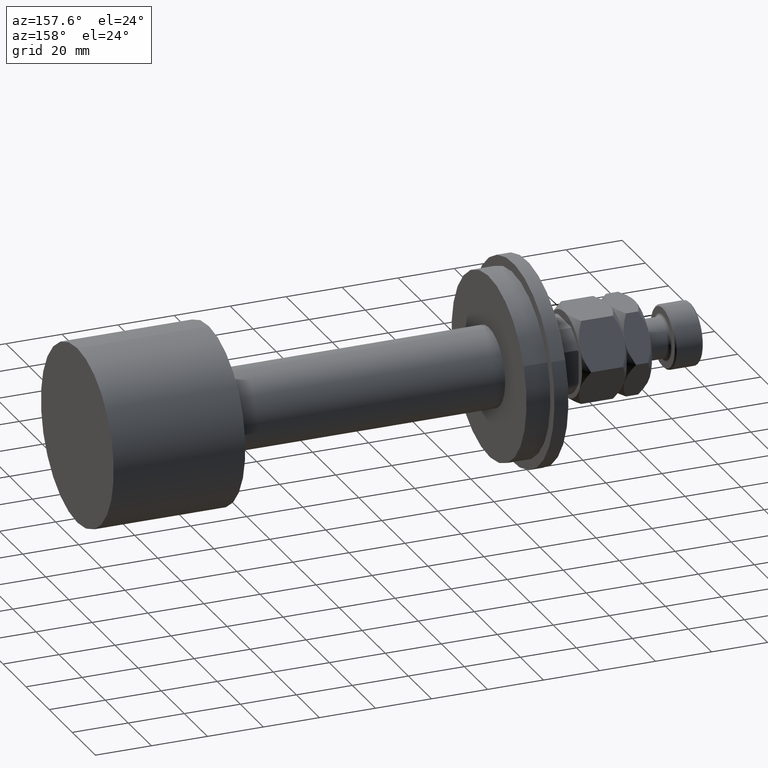
[diagram: clean part render]
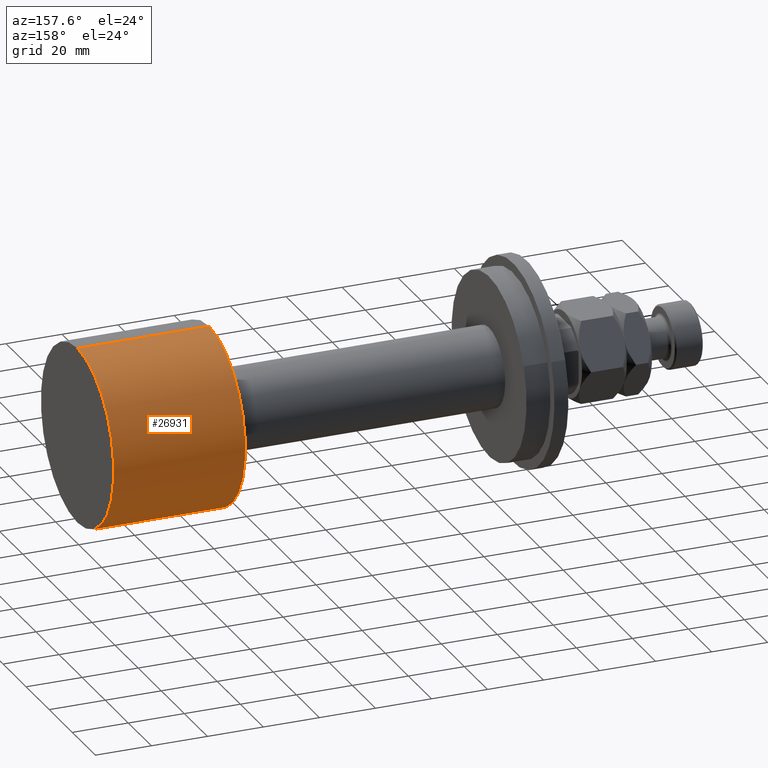
[diagram: same view with one face highlighted and labeled with its STEP entity id]
A machine part, auxiliary view. The second image highlights one B-rep face of the part: STEP entity #26931.
In plain terms, the highlighted cylindrical surface (partial cylindrical patch) has radius 31.5 mm, axis along (1, -0, -0).
Its self-contained STEP definition (entity closure, byte-faithful):
#32 = DIRECTION ( 'NONE',  ( 1.000000000000000000, 0.000000000000000000, 0.000000000000000000 ) ) ;
#1116 = VERTEX_POINT ( 'NONE', #18604 ) ;
#1372 = ORIENTED_EDGE ( 'NONE', *, *, #41803, .T. ) ;
#1601 = AXIS2_PLACEMENT_3D ( 'NONE', #34323, #21181, #32 ) ;
#4584 = LINE ( 'NONE', #7798, #39978 ) ;
#4996 = AXIS2_PLACEMENT_3D ( 'NONE', #44204, #6024, #37071 ) ;
#5038 = DIRECTION ( 'NONE',  ( -0.000000000000000000, -0.000000000000000000, -1.000000000000000000 ) ) ;
#5139 = CARTESIAN_POINT ( 'NONE',  ( 31.50000000000000000, 3.857637417314162689E-15, 0.000000000000000000 ) ) ;
#6024 = DIRECTION ( 'NONE',  ( -0.000000000000000000, -0.000000000000000000, -1.000000000000000000 ) ) ;
#6136 = VERTEX_POINT ( 'NONE', #5139 ) ;
#7798 = CARTESIAN_POINT ( 'NONE',  ( 31.50000000000000000, 3.857637417314162689E-15, 47.00000000000000000 ) ) ;
#8723 = CIRCLE ( 'NONE', #35911, 31.50000000000000000 ) ;
#8965 = CARTESIAN_POINT ( 'NONE',  ( 0.000000000000000000, 0.000000000000000000, 47.00000000000000000 ) ) ;
#16921 = EDGE_CURVE ( 'NONE', #1116, #6136, #4584, .T. ) ;
#17473 = EDGE_LOOP ( 'NONE', ( #25288, #37453, #1372, #36624 ) ) ;
#17511 = CARTESIAN_POINT ( 'NONE',  ( -31.50000000000000000, 0.000000000000000000, 47.00000000000000000 ) ) ;
#18217 = CARTESIAN_POINT ( 'NONE',  ( -31.50000000000000000, 0.000000000000000000, 0.000000000000000000 ) ) ;
#18604 = CARTESIAN_POINT ( 'NONE',  ( 31.50000000000000000, 3.857637417314162689E-15, 47.00000000000000000 ) ) ;
#19537 = DIRECTION ( 'NONE',  ( 1.000000000000000000, 0.000000000000000000, 0.000000000000000000 ) ) ;
#21181 = DIRECTION ( 'NONE',  ( 0.000000000000000000, 0.000000000000000000, 1.000000000000000000 ) ) ;
#21639 = DIRECTION ( 'NONE',  ( -0.000000000000000000, -0.000000000000000000, -1.000000000000000000 ) ) ;
#23477 = CYLINDRICAL_SURFACE ( 'NONE', #4996, 31.50000000000000000 ) ;
#24206 = VERTEX_POINT ( 'NONE', #31862 ) ;
#24628 = LINE ( 'NONE', #17511, #38943 ) ;
#25288 = ORIENTED_EDGE ( 'NONE', *, *, #32415, .F. ) ;
#25915 = VERTEX_POINT ( 'NONE', #18217 ) ;
#26931 = ADVANCED_FACE ( 'NONE', ( #37302 ), #23477, .T. ) ;
#27113 = DIRECTION ( 'NONE',  ( 0.000000000000000000, 0.000000000000000000, 1.000000000000000000 ) ) ;
#31862 = CARTESIAN_POINT ( 'NONE',  ( -31.50000000000000000, 0.000000000000000000, 47.00000000000000000 ) ) ;
#32415 = EDGE_CURVE ( 'NONE', #1116, #24206, #8723, .T. ) ;
#34323 = CARTESIAN_POINT ( 'NONE',  ( 0.000000000000000000, 0.000000000000000000, 0.000000000000000000 ) ) ;
#35911 = AXIS2_PLACEMENT_3D ( 'NONE', #8965, #27113, #19537 ) ;
#36624 = ORIENTED_EDGE ( 'NONE', *, *, #37847, .F. ) ;
#37071 = DIRECTION ( 'NONE',  ( -1.000000000000000000, 0.000000000000000000, 0.000000000000000000 ) ) ;
#37302 = FACE_OUTER_BOUND ( 'NONE', #17473, .T. ) ;
#37453 = ORIENTED_EDGE ( 'NONE', *, *, #16921, .T. ) ;
#37847 = EDGE_CURVE ( 'NONE', #24206, #25915, #24628, .T. ) ;
#38943 = VECTOR ( 'NONE', #21639, 1000.000000000000000 ) ;
#39978 = VECTOR ( 'NONE', #5038, 1000.000000000000000 ) ;
#41250 = CIRCLE ( 'NONE', #1601, 31.50000000000000000 ) ;
#41803 = EDGE_CURVE ( 'NONE', #6136, #25915, #41250, .T. ) ;
#44204 = CARTESIAN_POINT ( 'NONE',  ( 0.000000000000000000, 0.000000000000000000, 47.00000000000000000 ) ) ;